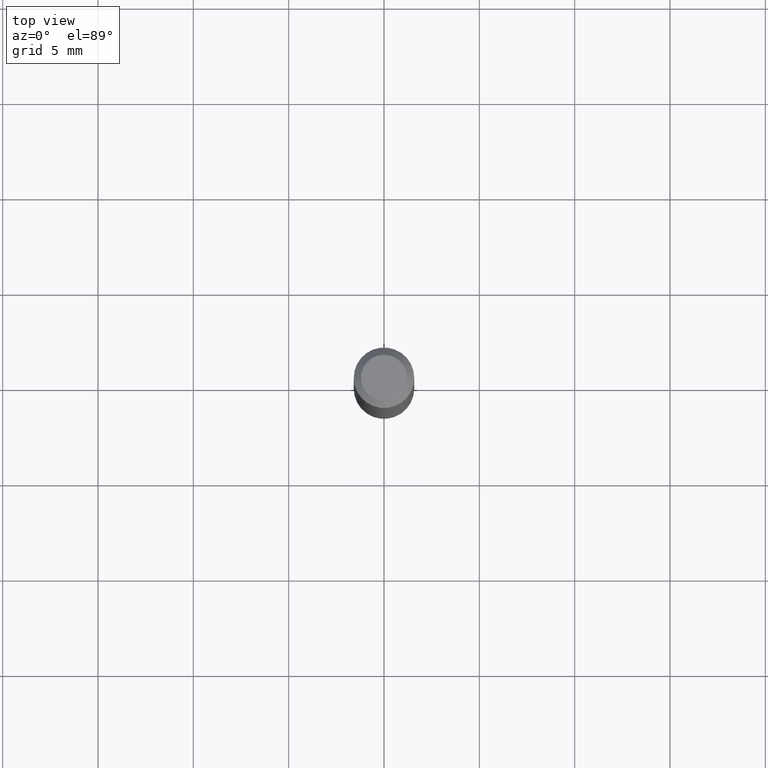
[diagram: clean part render]
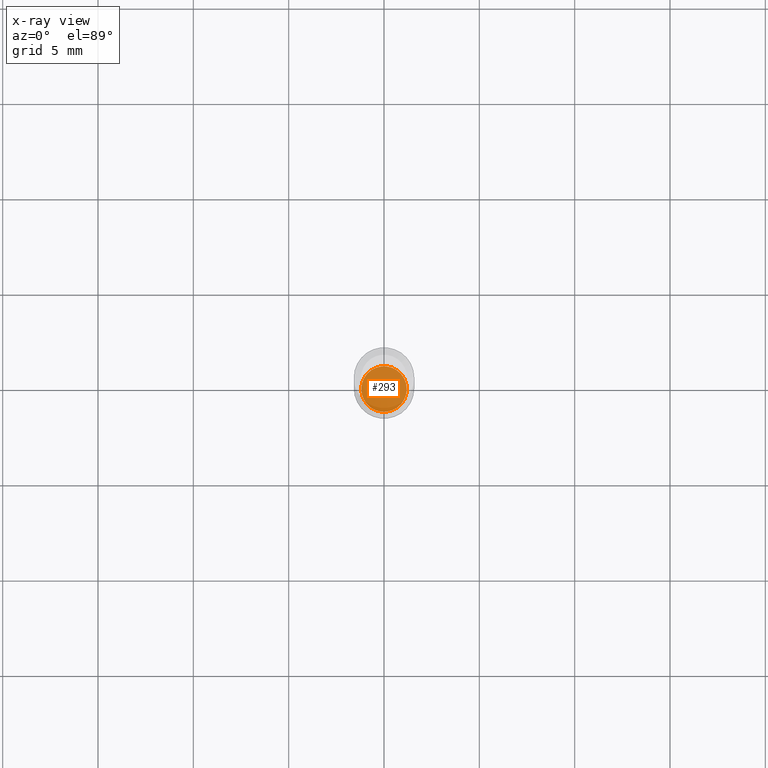
[diagram: x-ray — body ghosted, one internal face saturated and labeled with its STEP entity id]
A machine part, top view, then the same camera in x-ray: the body is ghosted and one INTERNAL B-rep face — a face not visible from any outside direction — is saturated and labeled: STEP entity #293.
In plain terms, the highlighted planar face has unit normal (-0, 0, 1).
Its self-contained STEP definition (entity closure, byte-faithful):
#27 = AXIS2_PLACEMENT_3D ( 'NONE', #355, #517, #126 ) ;
#45 = VERTEX_POINT ( 'NONE', #450 ) ;
#57 = AXIS2_PLACEMENT_3D ( 'NONE', #297, #373, #61 ) ;
#59 = EDGE_CURVE ( 'NONE', #45, #176, #462, .T. ) ;
#61 = DIRECTION ( 'NONE',  ( 1.000000000000000000, -6.982962677686269866E-15, 0.000000000000000000 ) ) ;
#72 = DIRECTION ( 'NONE',  ( -2.438088387897960049E-29, 3.491481338843145188E-15, 1.000000000000000000 ) ) ;
#126 = DIRECTION ( 'NONE',  ( 1.000000000000000000, -6.982962677686269866E-15, 0.000000000000000000 ) ) ;
#163 = DIRECTION ( 'NONE',  ( 1.000000000000000000, -6.982962677686265922E-15, 4.876176775795935793E-29 ) ) ;
#173 = EDGE_LOOP ( 'NONE', ( #467, #337 ) ) ;
#176 = VERTEX_POINT ( 'NONE', #349 ) ;
#194 = AXIS2_PLACEMENT_3D ( 'NONE', #477, #72, #163 ) ;
#238 = PLANE ( 'NONE',  #194 ) ;
#293 = ADVANCED_FACE ( 'NONE', ( #428 ), #238, .F. ) ;
#297 = CARTESIAN_POINT ( 'NONE',  ( 3.319723904396323737E-29, -4.739685917479570727E-15, -1.357500000000000151 ) ) ;
#337 = ORIENTED_EDGE ( 'NONE', *, *, #59, .F. ) ;
#349 = CARTESIAN_POINT ( 'NONE',  ( 0.04700000000000000705, -5.067885163330825231E-15, -1.357500000000000151 ) ) ;
#353 = CIRCLE ( 'NONE', #27, 0.04700000000000000705 ) ;
#355 = CARTESIAN_POINT ( 'NONE',  ( 3.319723904396323737E-29, -4.739685917479570727E-15, -1.357500000000000151 ) ) ;
#373 = DIRECTION ( 'NONE',  ( -2.445468806185136597E-29, 3.491481338843145583E-15, 1.000000000000000000 ) ) ;
#417 = EDGE_CURVE ( 'NONE', #176, #45, #353, .T. ) ;
#428 = FACE_OUTER_BOUND ( 'NONE', #173, .T. ) ;
#450 = CARTESIAN_POINT ( 'NONE',  ( -0.04700000000000000705, -4.403081604498212142E-15, -1.357500000000000151 ) ) ;
#462 = CIRCLE ( 'NONE', #57, 0.04700000000000000705 ) ;
#467 = ORIENTED_EDGE ( 'NONE', *, *, #417, .F. ) ;
#477 = CARTESIAN_POINT ( 'NONE',  ( 3.319723904396323737E-29, -4.739685917479570727E-15, -1.357500000000000151 ) ) ;
#517 = DIRECTION ( 'NONE',  ( -2.445468806185136597E-29, 3.491481338843145583E-15, 1.000000000000000000 ) ) ;